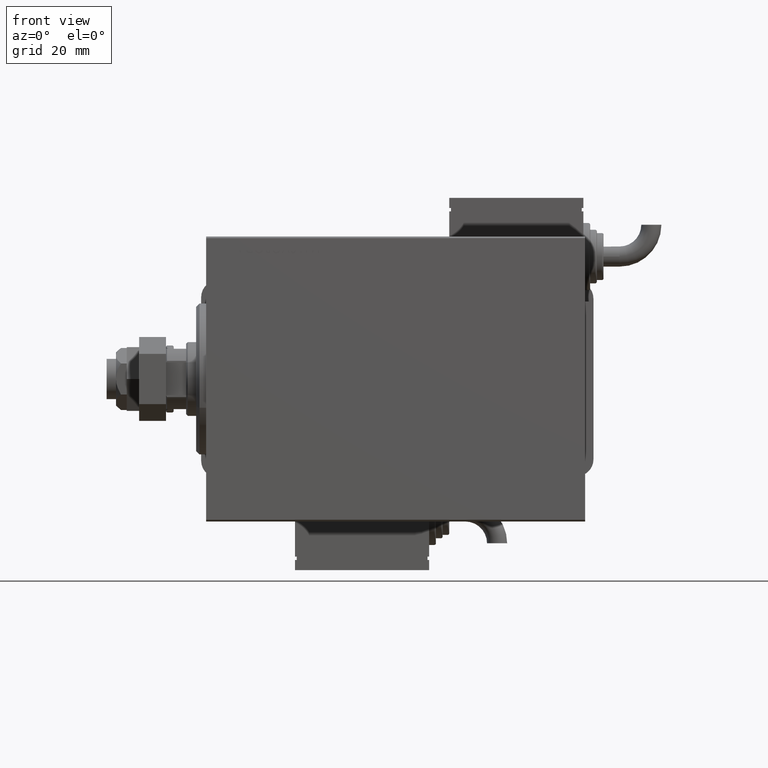
[diagram: clean part render]
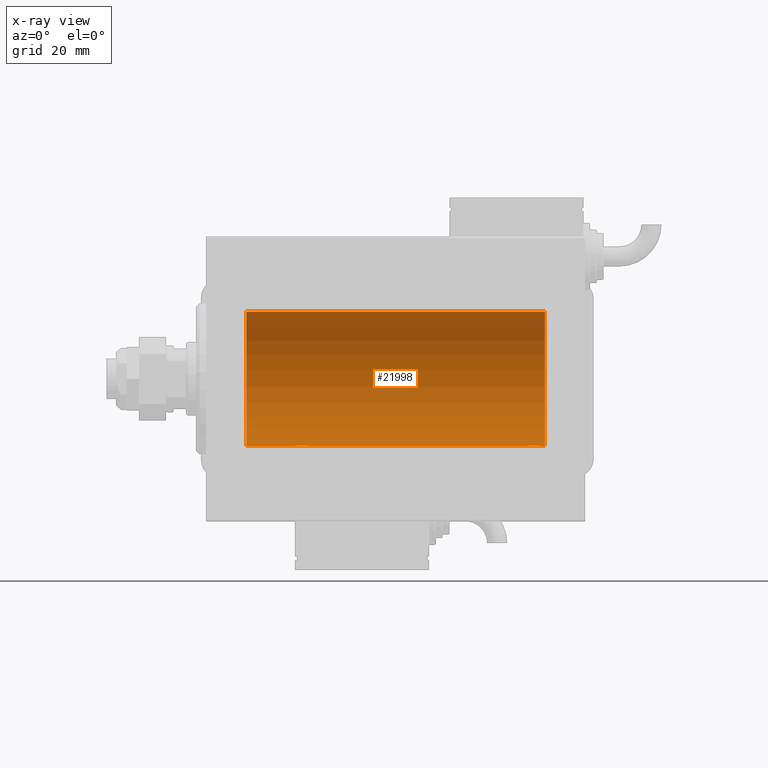
[diagram: x-ray — body ghosted, one internal face saturated and labeled with its STEP entity id]
A machine part, front view, then the same camera in x-ray: the body is ghosted and one INTERNAL B-rep face — a face not visible from any outside direction — is saturated and labeled: STEP entity #21998.
In plain terms, the highlighted cylindrical surface (partial cylindrical patch) has radius 20 mm, axis along (-1, -0, -0).
Its self-contained STEP definition (entity closure, byte-faithful):
#277 = DIRECTION ( 'NONE',  ( -1.000000000000000000, -0.000000000000000000, -0.000000000000000000 ) ) ;
#325 = CARTESIAN_POINT ( 'NONE',  ( 97.62981181290705024, 2.000047251570872930, -19.89974399317116038 ) ) ;
#395 = CIRCLE ( 'NONE', #25525, 20.00000000000000000 ) ;
#812 = VECTOR ( 'NONE', #53809, 1000.000000000000000 ) ;
#925 = CARTESIAN_POINT ( 'NONE',  ( 95.70278656943304441, 0.8872481584516571651, -19.98067755938510359 ) ) ;
#2601 = DIRECTION ( 'NONE',  ( -1.000000000000000000, 0.000000000000000000, 0.000000000000000000 ) ) ;
#2866 = CARTESIAN_POINT ( 'NONE',  ( 28.76241417820002155, 1.987020435121070516, -19.90106552791689154 ) ) ;
#3055 = CARTESIAN_POINT ( 'NONE',  ( 101.0000000000000000, 2.449293598294706513E-15, -20.00000000000000000 ) ) ;
#3158 = CARTESIAN_POINT ( 'NONE',  ( 26.50000000000001066, 0.1322335637814670561, -19.99999999999999645 ) ) ;
#3462 = CARTESIAN_POINT ( 'NONE',  ( 29.14371130639851160, 1.898109641280501636, -19.90978941500366872 ) ) ;
#4479 = B_SPLINE_CURVE_WITH_KNOTS ( 'NONE', 3,
 ( #36602, #46264, #51390, #46563, #23600, #925, #56222, #4870, #18168, #10000, #28437, #31788, #23303, #325, #18756, #50209, #8802, #27237, #45664, #22705, #55036, #33860, #28734, #47164, #10301, #25111, #33270, #43530, #11201, #39292 ),
 .UNSPECIFIED., .F., .F.,
 ( 4, 2, 2, 2, 2, 2, 2, 2, 2, 2, 2, 2, 2, 2, 4 ),
 ( 2.320328224351160231E-18, 0.0003910512220831150344, 0.0007821024441662276835, 0.001173153666249340766, 0.001564204888332453849, 0.002346307332498709722, 0.003128409776664966245, 0.003519460998748073256, 0.003910512220831181135, 0.004301563442914288146, 0.004692614664997395157, 0.005083665887080503036, 0.005474717109163609180, 0.005865768331246717059, 0.006256819553329824070 ),
 .UNSPECIFIED. ) ;
#4870 = CARTESIAN_POINT ( 'NONE',  ( 95.90940266542446579, 1.219458756546251355, -19.96308513509966787 ) ) ;
#5469 = VERTEX_POINT ( 'NONE', #34872 ) ;
#5700 = EDGE_CURVE ( 'NONE', #26985, #25181, #48701, .T. ) ;
#6316 = CARTESIAN_POINT ( 'NONE',  ( 30.50000000000000000, 2.449293582768389958E-15, -20.00000000000000000 ) ) ;
#7408 = CARTESIAN_POINT ( 'NONE',  ( 26.60234886833925927, 0.6450624715427553113, -19.98996196681220638 ) ) ;
#7995 = CARTESIAN_POINT ( 'NONE',  ( 30.50000000000000000, 2.449293582768389958E-15, -20.00000000000000000 ) ) ;
#8802 = CARTESIAN_POINT ( 'NONE',  ( 98.14371130639851515, 1.898109641280492532, -19.90978941500366872 ) ) ;
#9134 = ORIENTED_EDGE ( 'NONE', *, *, #5700, .F. ) ;
#9907 = EDGE_CURVE ( 'NONE', #21834, #5469, #395, .T. ) ;
#10000 = CARTESIAN_POINT ( 'NONE',  ( 96.27049887769366876, 1.598854313793167448, -19.93684595445884966 ) ) ;
#10301 = CARTESIAN_POINT ( 'NONE',  ( 99.29753901127162408, 0.8865903856744286049, -19.98070694681039328 ) ) ;
#11201 = CARTESIAN_POINT ( 'NONE',  ( 99.49999999999997158, 0.1305706983324442239, -19.99999999999999645 ) ) ;
#12132 = DIRECTION ( 'NONE',  ( -1.000000000000000000, -0.000000000000000000, -0.000000000000000000 ) ) ;
#12635 = CARTESIAN_POINT ( 'NONE',  ( 11.99999999999999645, 0.000000000000000000, 20.00000000000000000 ) ) ;
#12819 = CARTESIAN_POINT ( 'NONE',  ( 30.50000000000000000, 0.1305706983324451675, -19.99999999999999289 ) ) ;
#13449 = VECTOR ( 'NONE', #15434, 1000.000000000000000 ) ;
#15434 = DIRECTION ( 'NONE',  ( -1.000000000000000000, -0.000000000000000000, -0.000000000000000000 ) ) ;
#16113 = ORIENTED_EDGE ( 'NONE', *, *, #59817, .T. ) ;
#16197 = VERTEX_POINT ( 'NONE', #32923 ) ;
#16370 = ORIENTED_EDGE ( 'NONE', *, *, #16556, .T. ) ;
#16475 = CARTESIAN_POINT ( 'NONE',  ( 27.49354240926169268, 1.747830109444738156, -19.92373272380676852 ) ) ;
#16556 = EDGE_CURVE ( 'NONE', #17376, #16197, #30440, .T. ) ;
#17376 = VERTEX_POINT ( 'NONE', #12635 ) ;
#18168 = CARTESIAN_POINT ( 'NONE',  ( 95.99384229619285236, 1.322305185229293967, -19.95645382900616482 ) ) ;
#18303 = CARTESIAN_POINT ( 'NONE',  ( 101.0000000000000000, 2.449293598294706513E-15, -20.00000000000000000 ) ) ;
#18756 = CARTESIAN_POINT ( 'NONE',  ( 97.76241417820000379, 1.987020435121059858, -19.90106552791689154 ) ) ;
#20836 = VERTEX_POINT ( 'NONE', #46887 ) ;
#21007 = CARTESIAN_POINT ( 'NONE',  ( 26.99384229619287012, 1.322305185229304625, -19.95645382900617548 ) ) ;
#21038 = ORIENTED_EDGE ( 'NONE', *, *, #24933, .F. ) ;
#21598 = CARTESIAN_POINT ( 'NONE',  ( 30.29753901127163118, 0.8865903856744307143, -19.98070694681039683 ) ) ;
#21834 = VERTEX_POINT ( 'NONE', #55361 ) ;
#21895 = CARTESIAN_POINT ( 'NONE',  ( 28.62981181290706090, 2.000047251570884477, -19.89974399317115683 ) ) ;
#21998 = ADVANCED_FACE ( 'NONE', ( #36853 ), #46219, .F. ) ;
#22705 = CARTESIAN_POINT ( 'NONE',  ( 98.71960275349742631, 1.590453176650910905, -19.93679350243183634 ) ) ;
#22841 = LINE ( 'NONE', #18303, #42404 ) ;
#23303 = CARTESIAN_POINT ( 'NONE',  ( 97.23819846102563247, 1.999905101582708511, -19.89975827978156886 ) ) ;
#23600 = CARTESIAN_POINT ( 'NONE',  ( 95.60234886833930545, 0.6450624715427437650, -19.98996196681220994 ) ) ;
#24933 = EDGE_CURVE ( 'NONE', #20836, #16197, #58335, .T. ) ;
#24946 = EDGE_LOOP ( 'NONE', ( #53753, #36617, #31029, #16370, #21038, #16113, #9134, #43160 ) ) ;
#25111 = CARTESIAN_POINT ( 'NONE',  ( 99.39789687358863546, 0.6443418861413100496, -19.98998539619404369 ) ) ;
#25181 = VERTEX_POINT ( 'NONE', #6316 ) ;
#25525 = AXIS2_PLACEMENT_3D ( 'NONE', #30976, #26425, #31261 ) ;
#26425 = DIRECTION ( 'NONE',  ( -1.000000000000000000, 0.000000000000000000, 0.000000000000000000 ) ) ;
#26729 = CARTESIAN_POINT ( 'NONE',  ( 26.50000000000000355, -6.257798774011376898E-15, -20.00000000000000000 ) ) ;
#26985 = VERTEX_POINT ( 'NONE', #32212 ) ;
#26992 = EDGE_CURVE ( 'NONE', #5469, #43386, #22841, .T. ) ;
#27237 = CARTESIAN_POINT ( 'NONE',  ( 98.38596189455837759, 1.797847595792753772, -19.91909332229798579 ) ) ;
#28390 = DIRECTION ( 'NONE',  ( 0.000000000000000000, 0.000000000000000000, 1.000000000000000000 ) ) ;
#28437 = CARTESIAN_POINT ( 'NONE',  ( 96.49354240926167847, 1.747830109444723945, -19.92373272380677207 ) ) ;
#28734 = CARTESIAN_POINT ( 'NONE',  ( 99.09007067689672965, 1.220099331833888412, -19.96304379627741099 ) ) ;
#30380 = CARTESIAN_POINT ( 'NONE',  ( 30.23489454601983795, 1.003547732426805617, -19.97510079925437054 ) ) ;
#30440 = CIRCLE ( 'NONE', #34306, 20.00000000000000000 ) ;
#30976 = CARTESIAN_POINT ( 'NONE',  ( 101.0000000000000000, 0.000000000000000000, 0.000000000000000000 ) ) ;
#31029 = ORIENTED_EDGE ( 'NONE', *, *, #56301, .T. ) ;
#31261 = DIRECTION ( 'NONE',  ( 0.000000000000000000, 0.000000000000000000, 1.000000000000000000 ) ) ;
#31264 = CARTESIAN_POINT ( 'NONE',  ( 29.82060165083834846, 1.507796451871724175, -19.94330239452387943 ) ) ;
#31788 = CARTESIAN_POINT ( 'NONE',  ( 96.97486091545003717, 1.947330458682935417, -19.90522393307484705 ) ) ;
#32212 = CARTESIAN_POINT ( 'NONE',  ( 95.50000000000000000, -1.207436508668459186E-14, -20.00000000000000000 ) ) ;
#32923 = CARTESIAN_POINT ( 'NONE',  ( 11.99999999999999645, 2.449293598294706513E-15, -20.00000000000000000 ) ) ;
#33270 = CARTESIAN_POINT ( 'NONE',  ( 99.43573148867290001, 0.5196544277756670605, -19.99365919015135518 ) ) ;
#33276 = B_SPLINE_CURVE_WITH_KNOTS ( 'NONE', 3,
 ( #26729, #3158, #44559, #48805, #7408, #53633, #39434, #43968, #21007, #35491, #16475, #39729, #44265, #21895, #2866, #35789, #3462, #34901, #49390, #58155, #31264, #53928, #53333, #30380, #21598, #49683, #44857, #40024, #12819, #7995 ),
 .UNSPECIFIED., .F., .F.,
 ( 4, 2, 2, 2, 2, 2, 2, 2, 2, 2, 2, 2, 2, 2, 4 ),
 ( 5.963022395843225278E-20, 0.0003910512220831150344, 0.0007821024441662300687, 0.001173153666249344886, 0.001564204888332459921, 0.002346307332498689339, 0.003128409776664918974, 0.003519460998748033791, 0.003910512220831149043, 0.004301563442914263860, 0.004692614664997378678, 0.005083665887080494362, 0.005474717109163609180, 0.005865768331246723997, 0.006256819553329837948 ),
 .UNSPECIFIED. ) ;
#33564 = CARTESIAN_POINT ( 'NONE',  ( 101.0000000000000000, 0.000000000000000000, 20.00000000000000000 ) ) ;
#33860 = CARTESIAN_POINT ( 'NONE',  ( 99.00738641543988194, 1.321069663197655952, -19.95654117037011943 ) ) ;
#34306 = AXIS2_PLACEMENT_3D ( 'NONE', #56703, #2601, #53076 ) ;
#34872 = CARTESIAN_POINT ( 'NONE',  ( 101.0000000000000000, 2.449293598294706513E-15, -20.00000000000000000 ) ) ;
#34901 = CARTESIAN_POINT ( 'NONE',  ( 29.38596189455837049, 1.797847595792762432, -19.91909332229799290 ) ) ;
#35369 = CARTESIAN_POINT ( 'NONE',  ( 101.0000000000000000, 2.449293598294706513E-15, -20.00000000000000000 ) ) ;
#35491 = CARTESIAN_POINT ( 'NONE',  ( 27.27049887769365810, 1.598854313793178994, -19.93684595445884256 ) ) ;
#35789 = CARTESIAN_POINT ( 'NONE',  ( 29.01899474186110695, 1.935912154109695082, -19.90610216711450420 ) ) ;
#36448 = AXIS2_PLACEMENT_3D ( 'NONE', #55281, #277, #28390 ) ;
#36602 = CARTESIAN_POINT ( 'NONE',  ( 95.50000000000000000, -1.207436508668459186E-14, -20.00000000000000000 ) ) ;
#36617 = ORIENTED_EDGE ( 'NONE', *, *, #9907, .F. ) ;
#36735 = DIRECTION ( 'NONE',  ( -1.000000000000000000, -0.000000000000000000, -0.000000000000000000 ) ) ;
#36853 = FACE_OUTER_BOUND ( 'NONE', #24946, .T. ) ;
#39292 = CARTESIAN_POINT ( 'NONE',  ( 99.50000000000000000, 2.449293582762473501E-15, -20.00000000000000000 ) ) ;
#39434 = CARTESIAN_POINT ( 'NONE',  ( 26.76423634872104884, 1.002099838626308248, -19.97517568592526160 ) ) ;
#39729 = CARTESIAN_POINT ( 'NONE',  ( 27.97486091545001230, 1.947330458682949850, -19.90522393307485061 ) ) ;
#40024 = CARTESIAN_POINT ( 'NONE',  ( 30.48691292011447374, 0.2631998640366455255, -19.99867931558985745 ) ) ;
#42404 = VECTOR ( 'NONE', #36735, 1000.000000000000000 ) ;
#43160 = ORIENTED_EDGE ( 'NONE', *, *, #59284, .T. ) ;
#43386 = VERTEX_POINT ( 'NONE', #54123 ) ;
#43530 = CARTESIAN_POINT ( 'NONE',  ( 99.48691292011447729, 0.2631998640366432496, -19.99867931558985745 ) ) ;
#43968 = CARTESIAN_POINT ( 'NONE',  ( 26.90940266542447645, 1.219458756546263789, -19.96308513509966787 ) ) ;
#44265 = CARTESIAN_POINT ( 'NONE',  ( 28.23819846102561826, 1.999905101582720279, -19.89975827978156886 ) ) ;
#44559 = CARTESIAN_POINT ( 'NONE',  ( 26.51298505384673732, 0.2622407139811037680, -19.99868965376114716 ) ) ;
#44857 = CARTESIAN_POINT ( 'NONE',  ( 30.43573148867292488, 0.5196544277756701691, -19.99365919015135518 ) ) ;
#45602 = VECTOR ( 'NONE', #12132, 1000.000000000000000 ) ;
#45664 = CARTESIAN_POINT ( 'NONE',  ( 98.50297226784951476, 1.735228749583824115, -19.92471474456648295 ) ) ;
#46219 = CYLINDRICAL_SURFACE ( 'NONE', #36448, 20.00000000000000000 ) ;
#46264 = CARTESIAN_POINT ( 'NONE',  ( 95.50000000000001421, 0.1322335637814586184, -20.00000000000000711 ) ) ;
#46563 = CARTESIAN_POINT ( 'NONE',  ( 95.56384771616671969, 0.5179893069484471368, -19.99370013622814923 ) ) ;
#46887 = CARTESIAN_POINT ( 'NONE',  ( 26.50000000000000355, -6.257798774011376898E-15, -20.00000000000000000 ) ) ;
#47164 = CARTESIAN_POINT ( 'NONE',  ( 99.23489454601983084, 1.003547732426797623, -19.97510079925437410 ) ) ;
#48701 = LINE ( 'NONE', #3055, #45602 ) ;
#48805 = CARTESIAN_POINT ( 'NONE',  ( 26.56384771616671969, 0.5179893069484556856, -19.99370013622814568 ) ) ;
#49390 = CARTESIAN_POINT ( 'NONE',  ( 29.50297226784953608, 1.735228749583830332, -19.92471474456648650 ) ) ;
#49683 = CARTESIAN_POINT ( 'NONE',  ( 30.39789687358864967, 0.6443418861413116039, -19.98998539619404724 ) ) ;
#50209 = CARTESIAN_POINT ( 'NONE',  ( 98.01899474186110695, 1.935912154109685090, -19.90610216711450775 ) ) ;
#51390 = CARTESIAN_POINT ( 'NONE',  ( 95.51298505384673376, 0.2622407139810962184, -19.99868965376115071 ) ) ;
#53076 = DIRECTION ( 'NONE',  ( 0.000000000000000000, 0.000000000000000000, 1.000000000000000000 ) ) ;
#53333 = CARTESIAN_POINT ( 'NONE',  ( 30.09007067689674741, 1.220099331833897294, -19.96304379627741099 ) ) ;
#53633 = CARTESIAN_POINT ( 'NONE',  ( 26.70278656943304796, 0.8872481584516701547, -19.98067755938510004 ) ) ;
#53753 = ORIENTED_EDGE ( 'NONE', *, *, #26992, .F. ) ;
#53809 = DIRECTION ( 'NONE',  ( -1.000000000000000000, -0.000000000000000000, -0.000000000000000000 ) ) ;
#53928 = CARTESIAN_POINT ( 'NONE',  ( 30.00738641543989260, 1.321069663197666388, -19.95654117037011588 ) ) ;
#54123 = CARTESIAN_POINT ( 'NONE',  ( 99.50000000000000000, 2.449293582762473501E-15, -20.00000000000000000 ) ) ;
#55036 = CARTESIAN_POINT ( 'NONE',  ( 98.82060165083834136, 1.507796451871713961, -19.94330239452387943 ) ) ;
#55281 = CARTESIAN_POINT ( 'NONE',  ( 101.0000000000000000, 0.000000000000000000, 0.000000000000000000 ) ) ;
#55361 = CARTESIAN_POINT ( 'NONE',  ( 101.0000000000000000, 0.000000000000000000, 20.00000000000000000 ) ) ;
#55933 = LINE ( 'NONE', #33564, #13449 ) ;
#56222 = CARTESIAN_POINT ( 'NONE',  ( 95.76423634872107016, 1.002099838626297590, -19.97517568592527226 ) ) ;
#56301 = EDGE_CURVE ( 'NONE', #21834, #17376, #55933, .T. ) ;
#56703 = CARTESIAN_POINT ( 'NONE',  ( 11.99999999999999645, 0.000000000000000000, 0.000000000000000000 ) ) ;
#58155 = CARTESIAN_POINT ( 'NONE',  ( 29.71960275349742986, 1.590453176650915346, -19.93679350243183634 ) ) ;
#58335 = LINE ( 'NONE', #35369, #812 ) ;
#59284 = EDGE_CURVE ( 'NONE', #26985, #43386, #4479, .T. ) ;
#59817 = EDGE_CURVE ( 'NONE', #20836, #25181, #33276, .T. ) ;